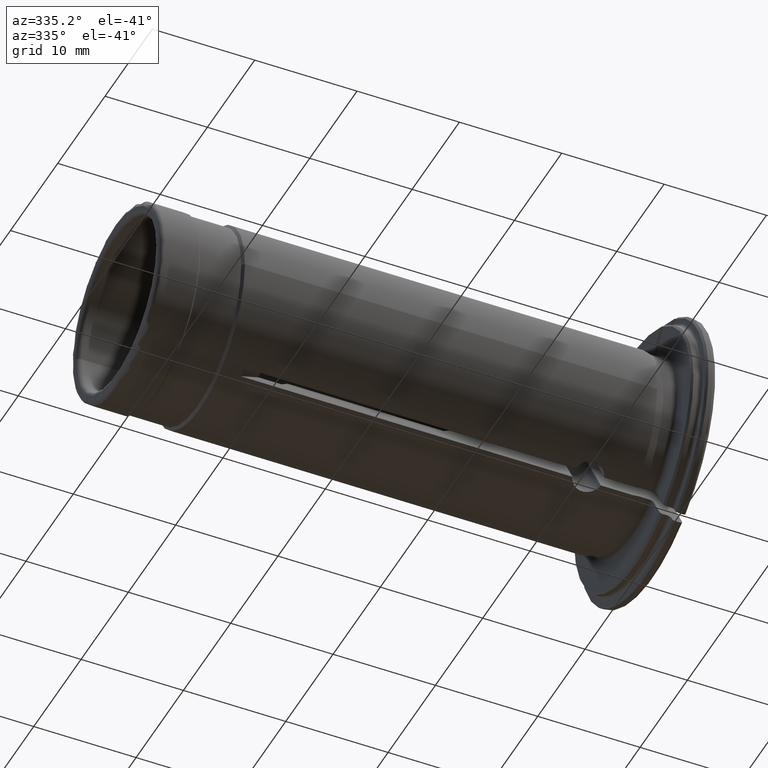
[diagram: clean part render]
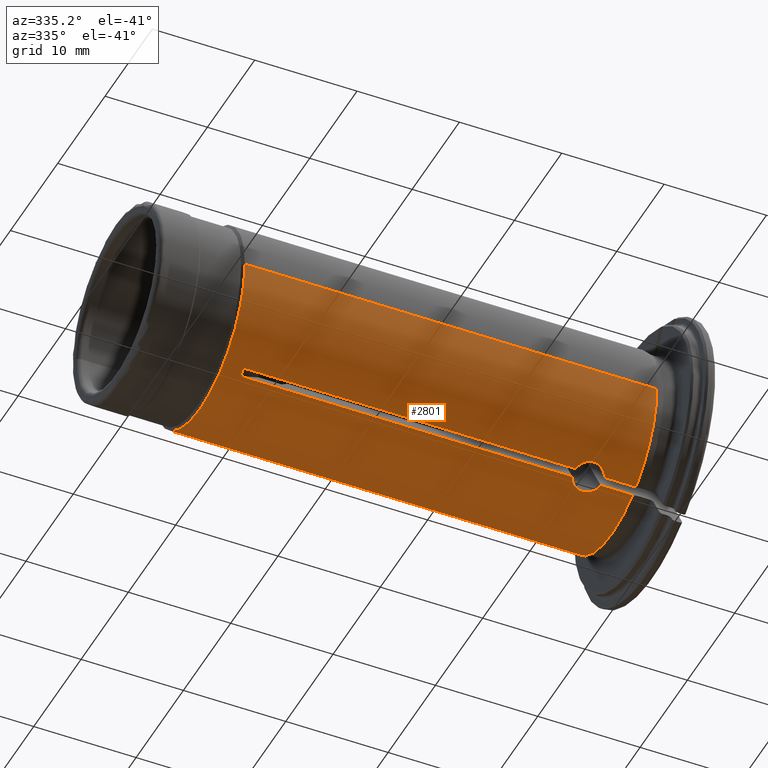
[diagram: same view with one face highlighted and labeled with its STEP entity id]
A machine part, auxiliary view. The second image highlights one B-rep face of the part: STEP entity #2801.
In plain terms, the highlighted cylindrical surface (partial cylindrical patch) has radius 9.525 mm, axis along (1, 0, 0).
Its self-contained STEP definition (entity closure, byte-faithful):
#49=CARTESIAN_POINT('',(-4.032597283355E1,9.525E0,0.E0));
#1057=DIRECTION('',(1.E0,0.E0,0.E0));
#1058=VECTOR('',#1057,3.241955688097E1);
#1059=CARTESIAN_POINT('',(-4.031329286745E1,-5.104708833308E0,
-8.041615057135E0));
#1060=LINE('',#1059,#1058);
#1061=CARTESIAN_POINT('',(-4.031329286745E1,-4.411888510281E0,
-8.441615057135E0));
#1062=CARTESIAN_POINT('',(-4.031892675336E1,-4.490652668519E0,
-8.400450104410E0));
#1063=CARTESIAN_POINT('',(-4.032644395249E1,-4.647058572676E0,
-8.315902657557E0));
#1064=CARTESIAN_POINT('',(-4.032643877113E1,-4.878416871257E0,
-8.182323914475E0));
#1065=CARTESIAN_POINT('',(-4.031892159023E1,-5.029745621756E0,
-8.089200693287E0));
#1066=CARTESIAN_POINT('',(-4.031329286745E1,-5.104708833308E0,
-8.041615057135E0));
#1068=DIRECTION('',(1.E0,0.E0,0.E0));
#1069=VECTOR('',#1068,3.241955688097E1);
#1070=CARTESIAN_POINT('',(-4.031329286745E1,-4.411888510281E0,
-8.441615057135E0));
#1071=LINE('',#1070,#1069);
#1072=CARTESIAN_POINT('',(-5.106264013523E0,-4.411888510281E0,
-8.441615057135E0));
#1073=CARTESIAN_POINT('',(-5.141397478333E0,-4.303299630308E0,
-8.498367471058E0));
#1074=CARTESIAN_POINT('',(-5.240200856497E0,-4.099678456311E0,
-8.599574279704E0));
#1075=CARTESIAN_POINT('',(-5.473600590421E0,-3.827271842917E0,
-8.723616101406E0));
#1076=CARTESIAN_POINT('',(-5.775134116474E0,-3.616454273205E0,
-8.812382902196E0));
#1077=CARTESIAN_POINT('',(-6.120013365345E0,-3.483882936004E0,
-8.865152755450E0));
#1078=CARTESIAN_POINT('',(-6.489680071772E0,-3.435570316229E0,
-8.883802246862E0));
#1079=CARTESIAN_POINT('',(-6.875868867487E0,-3.481483304002E0,
-8.866098950600E0));
#1080=CARTESIAN_POINT('',(-7.225928368785E0,-3.617032563131E0,
-8.812158639677E0));
#1081=CARTESIAN_POINT('',(-7.526614137548E0,-3.827542624501E0,
-8.723490994047E0));
#1082=CARTESIAN_POINT('',(-7.759911861024E0,-4.099853508388E0,
-8.599490522151E0));
#1083=CARTESIAN_POINT('',(-7.858620344377E0,-4.303354715909E0,
-8.498338681362E0));
#1084=CARTESIAN_POINT('',(-7.893735986477E0,-4.411888510281E0,
-8.441615057135E0));
#1086=DIRECTION('',(1.E0,0.E0,0.E0));
#1087=VECTOR('',#1086,3.106264013523E0);
#1088=CARTESIAN_POINT('',(-5.106264013523E0,-4.411888510281E0,
-8.441615057135E0));
#1089=LINE('',#1088,#1087);
#1090=CARTESIAN_POINT('',(-2.E0,0.E0,0.E0));
#1091=DIRECTION('',(1.E0,0.E0,0.E0));
#1092=DIRECTION('',(0.E0,-4.631903947801E-1,-8.862587986494E-1));
#1093=AXIS2_PLACEMENT_3D('',#1090,#1091,#1092);
#1095=DIRECTION('',(1.E0,0.E0,0.E0));
#1096=VECTOR('',#1095,3.106264013523E0);
#1097=CARTESIAN_POINT('',(-5.106264013523E0,9.516597343589E0,-4.E-1));
#1098=LINE('',#1097,#1096);
#1099=CARTESIAN_POINT('',(-7.893735986477E0,9.516597343589E0,-4.E-1));
#1100=CARTESIAN_POINT('',(-7.858494391450E0,9.511436099771E0,
-5.227936980228E-1));
#1101=CARTESIAN_POINT('',(-7.759323463276E0,9.497220854074E0,
-7.503206603212E-1));
#1102=CARTESIAN_POINT('',(-7.525064097550E0,9.468356673300E0,
-1.048673459807E0));
#1103=CARTESIAN_POINT('',(-7.222651001634E0,9.439791917447E0,
-1.275634005642E0));
#1104=CARTESIAN_POINT('',(-6.874062990660E0,9.419049188461E0,
-1.417687870264E0));
#1105=CARTESIAN_POINT('',(-6.499141170198E0,9.411457934604E0,
-1.466121881354E0));
#1106=CARTESIAN_POINT('',(-6.126462337199E0,9.419032787276E0,
-1.417824117652E0));
#1107=CARTESIAN_POINT('',(-5.775807728833E0,9.439902957040E0,
-1.274783713085E0));
#1108=CARTESIAN_POINT('',(-5.475271867016E0,9.468330808009E0,
-1.048929964936E0));
#1109=CARTESIAN_POINT('',(-5.239856185520E0,9.497322248192E0,
-7.491496535684E-1));
#1110=CARTESIAN_POINT('',(-5.141354975095E0,9.511458160520E0,
-5.222688398552E-1));
#1111=CARTESIAN_POINT('',(-5.106264013523E0,9.516597343589E0,-4.E-1));
#1113=DIRECTION('',(1.E0,0.E0,0.E0));
#1114=VECTOR('',#1113,3.241955688097E1);
#1115=CARTESIAN_POINT('',(-4.031329286745E1,9.516597343589E0,-4.E-1));
#1116=LINE('',#1115,#1114);
#1117=CARTESIAN_POINT('',(-4.032597283355E1,9.525E0,0.E0));
#1118=CARTESIAN_POINT('',(-4.032597283355E1,9.525E0,-4.441400604541E-2));
#1119=CARTESIAN_POINT('',(-4.032503590228E1,9.524378894054E0,
-1.332717044721E-1));
#1120=CARTESIAN_POINT('',(-4.032080991375E1,9.521577833239E0,
-2.666753472326E-1));
#1121=CARTESIAN_POINT('',(-4.031611232017E1,9.518465098348E0,
-3.555633250581E-1));
#1122=CARTESIAN_POINT('',(-4.031329286745E1,9.516597343589E0,-4.E-1));
#1124=DIRECTION('',(-1.E0,-1.227903176302E-10,-4.813389433692E-10));
#1125=VECTOR('',#1124,1.924027166687E0);
#1126=CARTESIAN_POINT('',(-4.032597283355E1,9.525E0,0.E0));
#1127=LINE('',#1126,#1125);
#1128=CARTESIAN_POINT('',(-4.225E1,0.E0,0.E0));
#1129=DIRECTION('',(1.E0,0.E0,0.E0));
#1130=DIRECTION('',(0.E0,-1.E0,0.E0));
#1131=AXIS2_PLACEMENT_3D('',#1128,#1129,#1130);
#1133=DIRECTION('',(-1.E0,5.869700860592E-12,2.300890021435E-11));
#1134=VECTOR('',#1133,4.025000000024E1);
#1135=CARTESIAN_POINT('',(-2.E0,-9.525E0,0.E0));
#1136=LINE('',#1135,#1134);
#1137=CARTESIAN_POINT('',(-2.E0,0.E0,0.E0));
#1138=DIRECTION('',(1.E0,0.E0,0.E0));
#1139=DIRECTION('',(0.E0,-1.E0,0.E0));
#1140=AXIS2_PLACEMENT_3D('',#1137,#1138,#1139);
#1142=DIRECTION('',(1.E0,0.E0,0.E0));
#1143=VECTOR('',#1142,3.106264013523E0);
#1144=CARTESIAN_POINT('',(-5.106264013523E0,-5.104708833308E0,
-8.041615057135E0));
#1145=LINE('',#1144,#1143);
#1146=CARTESIAN_POINT('',(-7.893735986477E0,-5.104708833308E0,
-8.041615057135E0));
#1147=CARTESIAN_POINT('',(-7.858512066721E0,-5.208418632006E0,
-7.975781474981E0));
#1148=CARTESIAN_POINT('',(-7.759442864985E0,-5.398292091523E0,
-7.849755872898E0));
#1149=CARTESIAN_POINT('',(-7.524892997105E0,-5.642458394646E0,
-7.675425261393E0));
#1150=CARTESIAN_POINT('',(-7.223020997875E0,-5.824488372522E0,
-7.537389196030E0));
#1151=CARTESIAN_POINT('',(-6.873569058707E0,-5.937363076740E0,
-7.448225414715E0));
#1152=CARTESIAN_POINT('',(-6.499724048173E0,-5.975441148023E0,
-7.417490673164E0));
#1153=CARTESIAN_POINT('',(-6.125903750299E0,-5.937250043065E0,
-7.448316106172E0));
#1154=CARTESIAN_POINT('',(-5.776603927979E0,-5.824306743103E0,
-7.537529909800E0));
#1155=CARTESIAN_POINT('',(-5.474935056294E0,-5.642301084765E0,
-7.675539663757E0));
#1156=CARTESIAN_POINT('',(-5.240536735038E0,-5.398243592930E0,
-7.849787630701E0));
#1157=CARTESIAN_POINT('',(-5.141483597698E0,-5.208405866754E0,
-7.975789578191E0));
#1158=CARTESIAN_POINT('',(-5.106264013523E0,-5.104708833308E0,
-8.041615057135E0));
#1581=CARTESIAN_POINT('',(-4.225E1,9.525E0,0.E0));
#1582=CARTESIAN_POINT('',(-4.225E1,-9.525E0,0.E0));
#1583=VERTEX_POINT('',#1581);
#1584=VERTEX_POINT('',#1582);
#1597=CARTESIAN_POINT('',(-2.E0,-9.525E0,0.E0));
#1598=VERTEX_POINT('',#1597);
#1607=VERTEX_POINT('',#49);
#1628=CARTESIAN_POINT('',(-4.031329286745E1,9.516597343589E0,-4.E-1));
#1629=CARTESIAN_POINT('',(-7.893735986477E0,9.516597343589E0,-4.E-1));
#1630=VERTEX_POINT('',#1628);
#1631=VERTEX_POINT('',#1629);
#1632=CARTESIAN_POINT('',(-5.106264013523E0,9.516597343589E0,-4.E-1));
#1633=CARTESIAN_POINT('',(-2.E0,9.516597343589E0,-4.E-1));
#1634=VERTEX_POINT('',#1632);
#1635=VERTEX_POINT('',#1633);
#1811=CARTESIAN_POINT('',(-4.031329286745E1,-5.104708833308E0,
-8.041615057135E0));
#1812=CARTESIAN_POINT('',(-7.893735986477E0,-5.104708833308E0,
-8.041615057135E0));
#1813=VERTEX_POINT('',#1811);
#1814=VERTEX_POINT('',#1812);
#1815=CARTESIAN_POINT('',(-5.106264013523E0,-5.104708833308E0,
-8.041615057135E0));
#1816=CARTESIAN_POINT('',(-2.E0,-5.104708833308E0,-8.041615057135E0));
#1817=VERTEX_POINT('',#1815);
#1818=VERTEX_POINT('',#1816);
#1819=CARTESIAN_POINT('',(-4.031329286745E1,-4.411888510281E0,
-8.441615057135E0));
#1820=CARTESIAN_POINT('',(-7.893735986477E0,-4.411888510281E0,
-8.441615057135E0));
#1821=VERTEX_POINT('',#1819);
#1822=VERTEX_POINT('',#1820);
#1823=CARTESIAN_POINT('',(-5.106264013523E0,-4.411888510281E0,
-8.441615057135E0));
#1824=CARTESIAN_POINT('',(-2.E0,-4.411888510281E0,-8.441615057135E0));
#1825=VERTEX_POINT('',#1823);
#1826=VERTEX_POINT('',#1824);
#2767=CARTESIAN_POINT('',(0.E0,0.E0,0.E0));
#2768=DIRECTION('',(1.E0,0.E0,0.E0));
#2769=DIRECTION('',(0.E0,-1.E0,0.E0));
#2770=AXIS2_PLACEMENT_3D('',#2767,#2768,#2769);
#2771=CYLINDRICAL_SURFACE('',#2770,9.525E0);
#2773=ORIENTED_EDGE('',*,*,#2772,.F.);
#2775=ORIENTED_EDGE('',*,*,#2774,.F.);
#2777=ORIENTED_EDGE('',*,*,#2776,.T.);
#2779=ORIENTED_EDGE('',*,*,#2778,.F.);
#2781=ORIENTED_EDGE('',*,*,#2780,.T.);
#2782=ORIENTED_EDGE('',*,*,#2696,.T.);
#2784=ORIENTED_EDGE('',*,*,#2783,.F.);
#2786=ORIENTED_EDGE('',*,*,#2785,.F.);
#2788=ORIENTED_EDGE('',*,*,#2787,.F.);
#2789=ORIENTED_EDGE('',*,*,#2755,.F.);
#2790=ORIENTED_EDGE('',*,*,#1920,.T.);
#2792=ORIENTED_EDGE('',*,*,#2791,.F.);
#2793=ORIENTED_EDGE('',*,*,#1916,.F.);
#2794=ORIENTED_EDGE('',*,*,#2677,.T.);
#2796=ORIENTED_EDGE('',*,*,#2795,.F.);
#2798=ORIENTED_EDGE('',*,*,#2797,.F.);
#2799=EDGE_LOOP('',(#2773,#2775,#2777,#2779,#2781,#2782,#2784,#2786,#2788,#2789,
#2790,#2792,#2793,#2794,#2796,#2798));
#2800=FACE_OUTER_BOUND('',#2799,.F.);
#2801=ADVANCED_FACE('',(#2800),#2771,.T.);
#1067=B_SPLINE_CURVE_WITH_KNOTS('',3,(#1061,#1062,#1063,#1064,#1065,#1066),
.UNSPECIFIED.,.F.,.F.,(4,1,1,4),(0.E0,3.333333333333E-1,6.666666666667E-1,1.E0),
.UNSPECIFIED.);
#1085=B_SPLINE_CURVE_WITH_KNOTS('',3,(#1072,#1073,#1074,#1075,#1076,#1077,#1078,
#1079,#1080,#1081,#1082,#1083,#1084),.UNSPECIFIED.,.F.,.F.,(4,1,1,1,1,1,1,1,1,1,
4),(0.E0,1.E-1,2.E-1,3.E-1,4.E-1,5.E-1,6.E-1,7.E-1,8.E-1,9.E-1,1.E0),
.UNSPECIFIED.);
#1094=CIRCLE('',#1093,9.525E0);
#1112=B_SPLINE_CURVE_WITH_KNOTS('',3,(#1099,#1100,#1101,#1102,#1103,#1104,#1105,
#1106,#1107,#1108,#1109,#1110,#1111),.UNSPECIFIED.,.F.,.F.,(4,1,1,1,1,1,1,1,1,1,
4),(0.E0,1.E-1,2.E-1,3.E-1,4.E-1,5.E-1,6.E-1,7.E-1,8.E-1,9.E-1,1.E0),
.UNSPECIFIED.);
#1123=B_SPLINE_CURVE_WITH_KNOTS('',3,(#1117,#1118,#1119,#1120,#1121,#1122),
.UNSPECIFIED.,.F.,.F.,(4,1,1,4),(0.E0,3.333333333333E-1,6.666666666667E-1,1.E0),
.UNSPECIFIED.);
#1132=CIRCLE('',#1131,9.525E0);
#1141=CIRCLE('',#1140,9.525E0);
#1159=B_SPLINE_CURVE_WITH_KNOTS('',3,(#1146,#1147,#1148,#1149,#1150,#1151,#1152,
#1153,#1154,#1155,#1156,#1157,#1158),.UNSPECIFIED.,.F.,.F.,(4,1,1,1,1,1,1,1,1,1,
4),(0.E0,1.E-1,2.E-1,3.E-1,4.E-1,5.E-1,6.E-1,7.E-1,8.E-1,9.E-1,1.E0),
.UNSPECIFIED.);
#1916=EDGE_CURVE('',#1598,#1584,#1136,.T.);
#1920=EDGE_CURVE('',#1607,#1583,#1127,.T.);
#2677=EDGE_CURVE('',#1598,#1818,#1141,.T.);
#2696=EDGE_CURVE('',#1826,#1635,#1094,.T.);
#2755=EDGE_CURVE('',#1607,#1630,#1123,.T.);
#2772=EDGE_CURVE('',#1813,#1814,#1060,.T.);
#2774=EDGE_CURVE('',#1821,#1813,#1067,.T.);
#2776=EDGE_CURVE('',#1821,#1822,#1071,.T.);
#2778=EDGE_CURVE('',#1825,#1822,#1085,.T.);
#2780=EDGE_CURVE('',#1825,#1826,#1089,.T.);
#2783=EDGE_CURVE('',#1634,#1635,#1098,.T.);
#2785=EDGE_CURVE('',#1631,#1634,#1112,.T.);
#2787=EDGE_CURVE('',#1630,#1631,#1116,.T.);
#2791=EDGE_CURVE('',#1584,#1583,#1132,.T.);
#2795=EDGE_CURVE('',#1817,#1818,#1145,.T.);
#2797=EDGE_CURVE('',#1814,#1817,#1159,.T.);